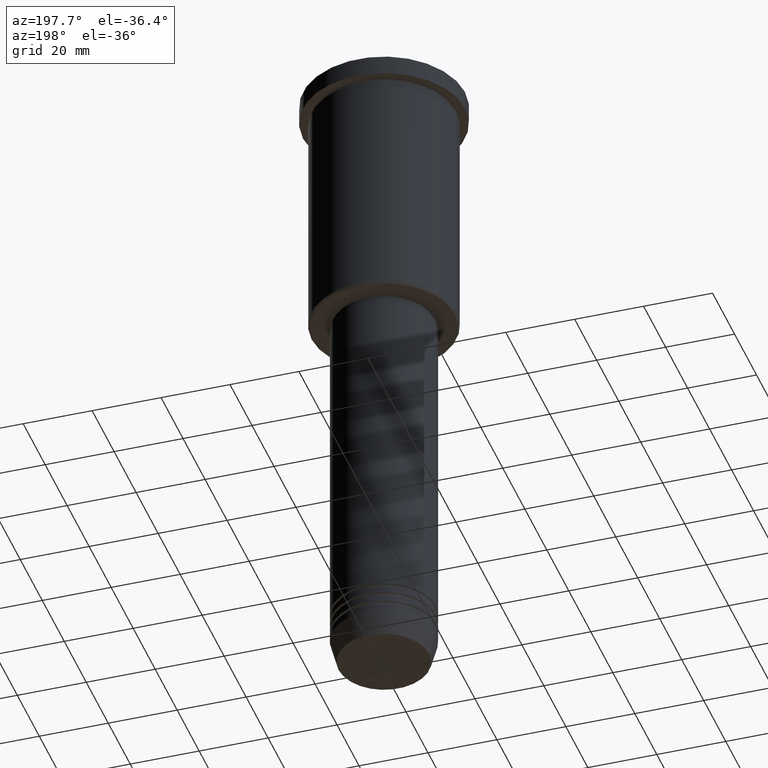
[diagram: clean part render]
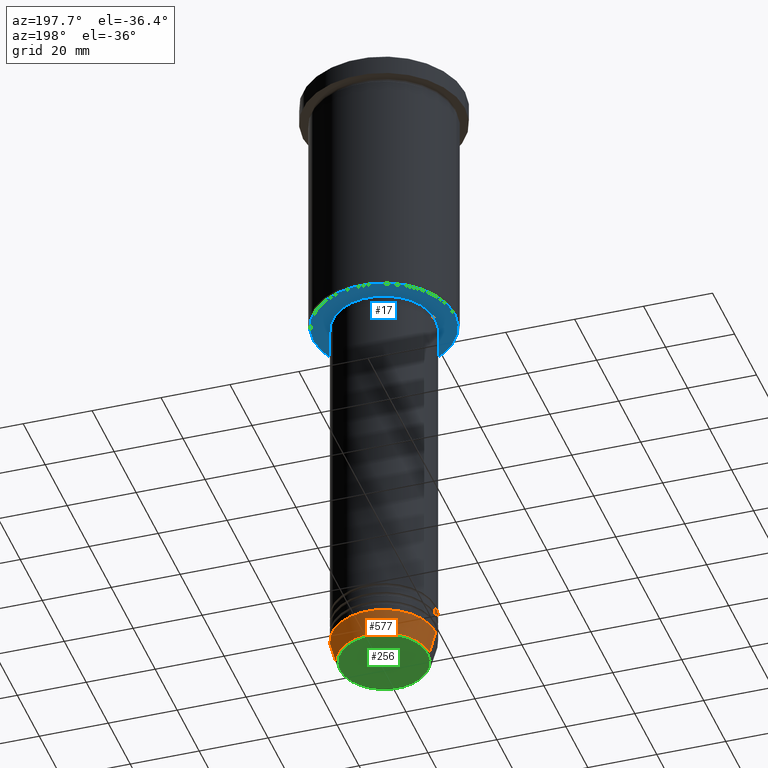
[diagram: same view with three faces highlighted in distinct colors, each labeled with its STEP entity id]
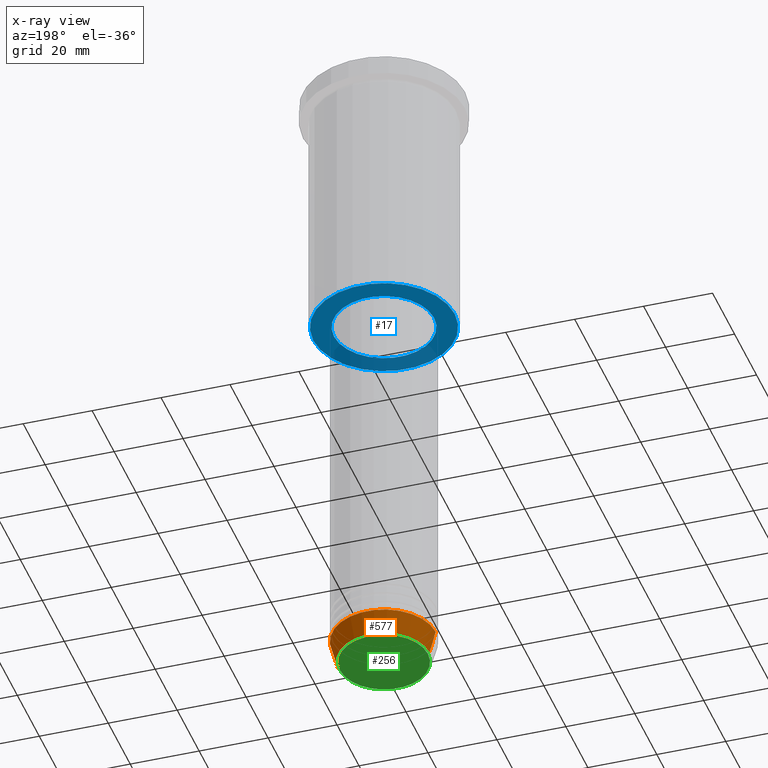
[diagram: x-ray of the same camera — body ghosted, the three highlighted faces saturated]
A machine part, auxiliary view with three faces highlighted in distinct colors.
The next image is the same camera in x-ray (body ghosted, the three faces saturated) — at least one of them is partly hidden behind the body in this view.
Their STEP definitions:

[orange] entity #577 — the highlighted conical surface has half-angle 15 deg.
#55 = VERTEX_POINT ( 'NONE', #751 ) ;
#144 = ORIENTED_EDGE ( 'NONE', *, *, #348, .T. ) ;
#150 = DIRECTION ( 'NONE',  ( -0.000000000000000000, -0.000000000000000000, 1.000000000000000000 ) ) ;
#219 = VERTEX_POINT ( 'NONE', #1131 ) ;
#244 = VECTOR ( 'NONE', #741, 1000.000000000000000 ) ;
#262 = AXIS2_PLACEMENT_3D ( 'NONE', #533, #723, #994 ) ;
#283 = CARTESIAN_POINT ( 'NONE',  ( 0.000000000000000000, 0.000000000000000000, -184.0000000000000284 ) ) ;
#288 = DIRECTION ( 'NONE',  ( 1.000000000000000000, 0.000000000000000000, 0.000000000000000000 ) ) ;
#293 = ORIENTED_EDGE ( 'NONE', *, *, #531, .F. ) ;
#346 = LINE ( 'NONE', #973, #1113 ) ;
#348 = EDGE_CURVE ( 'NONE', #922, #503, #1025, .T. ) ;
#393 = AXIS2_PLACEMENT_3D ( 'NONE', #283, #908, #288 ) ;
#399 = CARTESIAN_POINT ( 'NONE',  ( 0.000000000000000000, 0.000000000000000000, -184.0000000000000284 ) ) ;
#428 = EDGE_CURVE ( 'NONE', #55, #922, #838, .T. ) ;
#503 = VERTEX_POINT ( 'NONE', #1044 ) ;
#531 = EDGE_CURVE ( 'NONE', #55, #219, #346, .T. ) ;
#533 = CARTESIAN_POINT ( 'NONE',  ( 0.000000000000000000, 0.000000000000000000, -190.6294095225512422 ) ) ;
#577 = ADVANCED_FACE ( 'NONE', ( #825 ), #892, .T. ) ;
#668 = CARTESIAN_POINT ( 'NONE',  ( -13.22365507213719305, 1.728200442216588583E-15, -190.6294095225512422 ) ) ;
#692 = EDGE_LOOP ( 'NONE', ( #724, #144, #853, #293 ) ) ;
#700 = CIRCLE ( 'NONE', #1056, 15.00000000000000000 ) ;
#723 = DIRECTION ( 'NONE',  ( -0.000000000000000000, -0.000000000000000000, 1.000000000000000000 ) ) ;
#724 = ORIENTED_EDGE ( 'NONE', *, *, #428, .T. ) ;
#741 = DIRECTION ( 'NONE',  ( -0.2588190451025213501, 3.169619151431772337E-17, 0.9659258262890680902 ) ) ;
#751 = CARTESIAN_POINT ( 'NONE',  ( 13.22365507213719305, 0.000000000000000000, -190.6294095225512422 ) ) ;
#754 = DIRECTION ( 'NONE',  ( 1.000000000000000000, 0.000000000000000000, 0.000000000000000000 ) ) ;
#825 = FACE_OUTER_BOUND ( 'NONE', #692, .T. ) ;
#838 = CIRCLE ( 'NONE', #262, 13.22365507213719305 ) ;
#853 = ORIENTED_EDGE ( 'NONE', *, *, #969, .F. ) ;
#877 = DIRECTION ( 'NONE',  ( 0.2588190451025213501, 0.000000000000000000, 0.9659258262890680902 ) ) ;
#892 = CONICAL_SURFACE ( 'NONE', #393, 15.00000000000000000, 0.2617993877991500740 ) ;
#908 = DIRECTION ( 'NONE',  ( -0.000000000000000000, -0.000000000000000000, 1.000000000000000000 ) ) ;
#922 = VERTEX_POINT ( 'NONE', #668 ) ;
#925 = CARTESIAN_POINT ( 'NONE',  ( -15.00000000000000000, 1.836970198721029589E-15, -184.0000000000000284 ) ) ;
#969 = EDGE_CURVE ( 'NONE', #219, #503, #700, .T. ) ;
#973 = CARTESIAN_POINT ( 'NONE',  ( 15.00000000000000000, 0.000000000000000000, -184.0000000000000284 ) ) ;
#994 = DIRECTION ( 'NONE',  ( 1.000000000000000000, 0.000000000000000000, 0.000000000000000000 ) ) ;
#1025 = LINE ( 'NONE', #925, #244 ) ;
#1044 = CARTESIAN_POINT ( 'NONE',  ( -15.00000000000000000, 1.836970198721029589E-15, -184.0000000000000284 ) ) ;
#1056 = AXIS2_PLACEMENT_3D ( 'NONE', #399, #150, #754 ) ;
#1113 = VECTOR ( 'NONE', #877, 1000.000000000000000 ) ;
#1131 = CARTESIAN_POINT ( 'NONE',  ( 15.00000000000000000, 0.000000000000000000, -184.0000000000000284 ) ) ;

[blue] entity #17 — the highlighted planar face has unit normal (0, 0, -1).
#17 = ADVANCED_FACE ( 'NONE', ( #540, #146 ), #494, .T. ) ;
#39 = CARTESIAN_POINT ( 'NONE',  ( 0.000000000000000000, 0.000000000000000000, -76.00000000000001421 ) ) ;
#43 = CIRCLE ( 'NONE', #607, 20.49999999999998934 ) ;
#72 = DIRECTION ( 'NONE',  ( -0.000000000000000000, -0.000000000000000000, 1.000000000000000000 ) ) ;
#131 = CARTESIAN_POINT ( 'NONE',  ( -20.49999999999998934, 2.541142108230757480E-15, -76.00000000000001421 ) ) ;
#146 = FACE_BOUND ( 'NONE', #251, .T. ) ;
#191 = AXIS2_PLACEMENT_3D ( 'NONE', #382, #213, #281 ) ;
#197 = CARTESIAN_POINT ( 'NONE',  ( 0.000000000000000000, 0.000000000000000000, -76.00000000000001421 ) ) ;
#213 = DIRECTION ( 'NONE',  ( 0.000000000000000000, 0.000000000000000000, -1.000000000000000000 ) ) ;
#251 = EDGE_LOOP ( 'NONE', ( #761, #610 ) ) ;
#263 = CIRCLE ( 'NONE', #191, 20.49999999999998934 ) ;
#281 = DIRECTION ( 'NONE',  ( -1.000000000000000000, 0.000000000000000000, 0.000000000000000000 ) ) ;
#294 = AXIS2_PLACEMENT_3D ( 'NONE', #811, #1179, #1120 ) ;
#295 = AXIS2_PLACEMENT_3D ( 'NONE', #324, #689, #953 ) ;
#324 = CARTESIAN_POINT ( 'NONE',  ( 0.000000000000000000, 0.000000000000000000, -76.00000000000001421 ) ) ;
#382 = CARTESIAN_POINT ( 'NONE',  ( 0.000000000000000000, 0.000000000000000000, -76.00000000000001421 ) ) ;
#387 = EDGE_CURVE ( 'NONE', #1147, #715, #263, .T. ) ;
#429 = CARTESIAN_POINT ( 'NONE',  ( 14.49999999999999822, 0.000000000000000000, -76.00000000000001421 ) ) ;
#442 = EDGE_CURVE ( 'NONE', #596, #1060, #1072, .T. ) ;
#494 = PLANE ( 'NONE',  #294 ) ;
#521 = EDGE_LOOP ( 'NONE', ( #618, #864 ) ) ;
#540 = FACE_OUTER_BOUND ( 'NONE', #521, .T. ) ;
#543 = DIRECTION ( 'NONE',  ( -1.000000000000000000, 0.000000000000000000, 0.000000000000000000 ) ) ;
#596 = VERTEX_POINT ( 'NONE', #804 ) ;
#607 = AXIS2_PLACEMENT_3D ( 'NONE', #197, #1081, #543 ) ;
#610 = ORIENTED_EDGE ( 'NONE', *, *, #442, .T. ) ;
#618 = ORIENTED_EDGE ( 'NONE', *, *, #387, .T. ) ;
#627 = CIRCLE ( 'NONE', #959, 14.49999999999999822 ) ;
#689 = DIRECTION ( 'NONE',  ( -0.000000000000000000, -0.000000000000000000, 1.000000000000000000 ) ) ;
#715 = VERTEX_POINT ( 'NONE', #131 ) ;
#720 = DIRECTION ( 'NONE',  ( 1.000000000000000000, 0.000000000000000000, 0.000000000000000000 ) ) ;
#761 = ORIENTED_EDGE ( 'NONE', *, *, #775, .T. ) ;
#775 = EDGE_CURVE ( 'NONE', #1060, #596, #627, .T. ) ;
#804 = CARTESIAN_POINT ( 'NONE',  ( -14.49999999999999822, 1.775737858763662015E-15, -76.00000000000001421 ) ) ;
#811 = CARTESIAN_POINT ( 'NONE',  ( 0.000000000000000000, 21.00000000000000000, -76.00000000000001421 ) ) ;
#862 = CARTESIAN_POINT ( 'NONE',  ( 20.49999999999998934, 0.000000000000000000, -76.00000000000001421 ) ) ;
#864 = ORIENTED_EDGE ( 'NONE', *, *, #1156, .T. ) ;
#953 = DIRECTION ( 'NONE',  ( 1.000000000000000000, 0.000000000000000000, 0.000000000000000000 ) ) ;
#959 = AXIS2_PLACEMENT_3D ( 'NONE', #39, #72, #720 ) ;
#1060 = VERTEX_POINT ( 'NONE', #429 ) ;
#1072 = CIRCLE ( 'NONE', #295, 14.49999999999999822 ) ;
#1081 = DIRECTION ( 'NONE',  ( 0.000000000000000000, 0.000000000000000000, -1.000000000000000000 ) ) ;
#1120 = DIRECTION ( 'NONE',  ( -1.000000000000000000, 0.000000000000000000, -0.000000000000000000 ) ) ;
#1147 = VERTEX_POINT ( 'NONE', #862 ) ;
#1156 = EDGE_CURVE ( 'NONE', #715, #1147, #43, .T. ) ;
#1179 = DIRECTION ( 'NONE',  ( 0.000000000000000000, 0.000000000000000000, -1.000000000000000000 ) ) ;

[green] entity #256 — the highlighted planar face has unit normal (0, -0, 1).
#40 = AXIS2_PLACEMENT_3D ( 'NONE', #931, #489, #1010 ) ;
#59 = CIRCLE ( 'NONE', #40, 12.74069215899266538 ) ;
#119 = EDGE_CURVE ( 'NONE', #334, #1139, #562, .T. ) ;
#163 = CARTESIAN_POINT ( 'NONE',  ( 12.74069215899266538, 0.000000000000000000, -191.0000000000000000 ) ) ;
#256 = ADVANCED_FACE ( 'NONE', ( #882 ), #806, .F. ) ;
#334 = VERTEX_POINT ( 'NONE', #467 ) ;
#467 = CARTESIAN_POINT ( 'NONE',  ( -12.74069215899266538, 1.589857736427681824E-15, -191.0000000000000000 ) ) ;
#489 = DIRECTION ( 'NONE',  ( 0.000000000000000000, 0.000000000000000000, -1.000000000000000000 ) ) ;
#562 = CIRCLE ( 'NONE', #697, 12.74069215899266538 ) ;
#643 = ORIENTED_EDGE ( 'NONE', *, *, #763, .T. ) ;
#667 = DIRECTION ( 'NONE',  ( 1.000000000000000000, 0.000000000000000000, 0.000000000000000000 ) ) ;
#680 = DIRECTION ( 'NONE',  ( 1.000000000000000000, 0.000000000000000000, 0.000000000000000000 ) ) ;
#686 = EDGE_LOOP ( 'NONE', ( #643, #750 ) ) ;
#697 = AXIS2_PLACEMENT_3D ( 'NONE', #857, #766, #680 ) ;
#750 = ORIENTED_EDGE ( 'NONE', *, *, #119, .T. ) ;
#763 = EDGE_CURVE ( 'NONE', #1139, #334, #59, .T. ) ;
#766 = DIRECTION ( 'NONE',  ( 0.000000000000000000, 0.000000000000000000, -1.000000000000000000 ) ) ;
#806 = PLANE ( 'NONE',  #1172 ) ;
#857 = CARTESIAN_POINT ( 'NONE',  ( 0.000000000000000000, 0.000000000000000000, -191.0000000000000000 ) ) ;
#882 = FACE_OUTER_BOUND ( 'NONE', #686, .T. ) ;
#931 = CARTESIAN_POINT ( 'NONE',  ( 0.000000000000000000, 0.000000000000000000, -191.0000000000000000 ) ) ;
#1010 = DIRECTION ( 'NONE',  ( 1.000000000000000000, 0.000000000000000000, 0.000000000000000000 ) ) ;
#1139 = VERTEX_POINT ( 'NONE', #163 ) ;
#1166 = DIRECTION ( 'NONE',  ( 0.000000000000000000, -0.000000000000000000, 1.000000000000000000 ) ) ;
#1172 = AXIS2_PLACEMENT_3D ( 'NONE', #1182, #1166, #667 ) ;
#1182 = CARTESIAN_POINT ( 'NONE',  ( 0.000000000000000000, 0.000000000000000000, -191.0000000000000000 ) ) ;